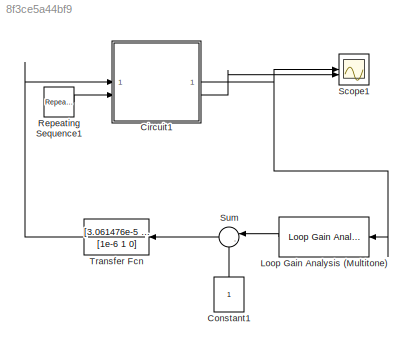
MODEL mdl_8f3ce5a44bf9
KIND model
CONFIG AbsTol = auto
CONFIG EnableMultiTasking = off
CONFIG FixedStep = auto
CONFIG MaxStep = 1e-8
CONFIG MinStep = auto
CONFIG RelTol = 1e-3
CONFIG SampleTimeConstraint = Unconstrained
CONFIG SolverName = ode45
CONFIG StartTime = 0.0
CONFIG StopTime = 0.002
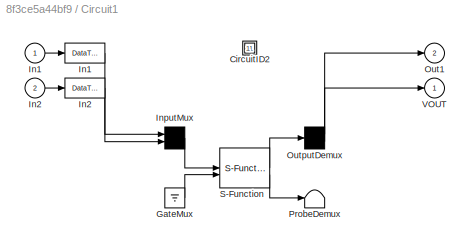
BLOCK [SubSystem] Circuit1
  CopyFcn = plecs('sl', 203);
  DeleteFcn = plecs('sl', 205);
  DestroyFcn = plecs('sl', 207);
  ErrorFcn = plerrorfcn
  InitFcn = plecs('sl', 214);
  LoadFcn = plecs('sl', 200);
  NameChangeFcn = plecs('sl', 210);
  OpenFcn = plecs('sl', 202);
  PostSaveFcn = plecs('sl', 201);
  PreCopyFcn = plecs('sl', 216);
  PreSaveFcn = plecs('sl', 211);
  StartFcn = plecs('sl', 208);
  StopFcn = plecs('sl', 209);
  UndoDeleteFcn = plecs('sl', 206);
BLOCK [SubSystem] Circuit1/ CircuitID2 
BLOCK [Ground] Circuit1/ GateMux 
BLOCK [DataTypeConversion] Circuit1/ In1 
BLOCK [DataTypeConversion] Circuit1/ In2 
BLOCK [Mux] Circuit1/ InputMux 
  Inputs = [ 1 1 ]
BLOCK [Demux] Circuit1/ OutputDemux 
  Outputs = [ 1 1 ]
BLOCK [Terminator] Circuit1/ ProbeDemux 
BLOCK [S-Function] Circuit1/ S-Function 
  EnableBusSupport = off
  FunctionName = plecs
  SFcnIsStateOwnerBlock = off
  SFunctionDeploymentMode = off
BLOCK [Inport] Circuit1/In1
  PortDimensions = 1
BLOCK [Inport] Circuit1/In2
  Port = 2
  PortDimensions = 1
BLOCK [Outport] Circuit1/Out1
  Port = 2
  PortDimensions = 1
BLOCK [Outport] Circuit1/VOUT
  PortDimensions = 1
BLOCK [Constant] Constant1
  NameLocation = right
BLOCK [Reference] Loop Gain Analysis (Multitone)  REF=plecslib_extras2/Analysis Tools/Loop Gain Analysis
(Multitone)
  SourceBlock = plecslib_extras2/Analysis Tools/Loop Gain Analysis\n(Multitone)
  SourceProductName = PLECS Extras
  SourceType = PLECS Loop Gain Analysis (Multitone)
BLOCK [Reference] Repeating Sequence1  REF=simulink/Sources/Repeating
Sequence
  SourceBlock = simulink/Sources/Repeating\nSequence
  SourceType = Repeating table
BLOCK [Scope] Scope1
  Floating = off
  NumInputPorts = 2
  ScopeSpecificationString = Simulink.scopes.TimeScopeBlockCfg('CurrentConfiguration', extmgr.ConfigurationSet(extmgr.Configuration('Core','General UI',true),extmgr.Configuration('Core','Source UI',true),extmgr.Configuration('Sources','WiredSimulink',true,'DataLoggingVariableName','ScopeData1'),extmgr.Configuration('Visuals','Time Domain',true,'SerializedDisplays',{struct('MinYLimReal','0.50204','MaxYLimReal','1.1586','YLabel...<+2027ch>
BLOCK [Sum] Sum
  Inputs = |-+
  NameLocation = top
BLOCK [TransferFcn] Transfer Fcn
  Denominator = [1e-6 1 0]
  NameLocation = top
  Numerator = [3.061476e-5 3.91704 1.0308e5]
NET Circuit1:1 -> Loop Gain Analysis (Multitone):1, Scope1:1
LINE Circuit1:2 -> Scope1:2
LINE Constant1:1 -> Sum:2
LINE Loop Gain Analysis (Multitone):1 -> Sum:1
LINE Repeating Sequence1:1 -> Circuit1:2
LINE Sum:1 -> Transfer Fcn:1
LINE Transfer Fcn:1 -> Circuit1:1
note: NET lines group one-source signal fan-out (src -> all destinations, sorted); 1:1 wires keep LINE
